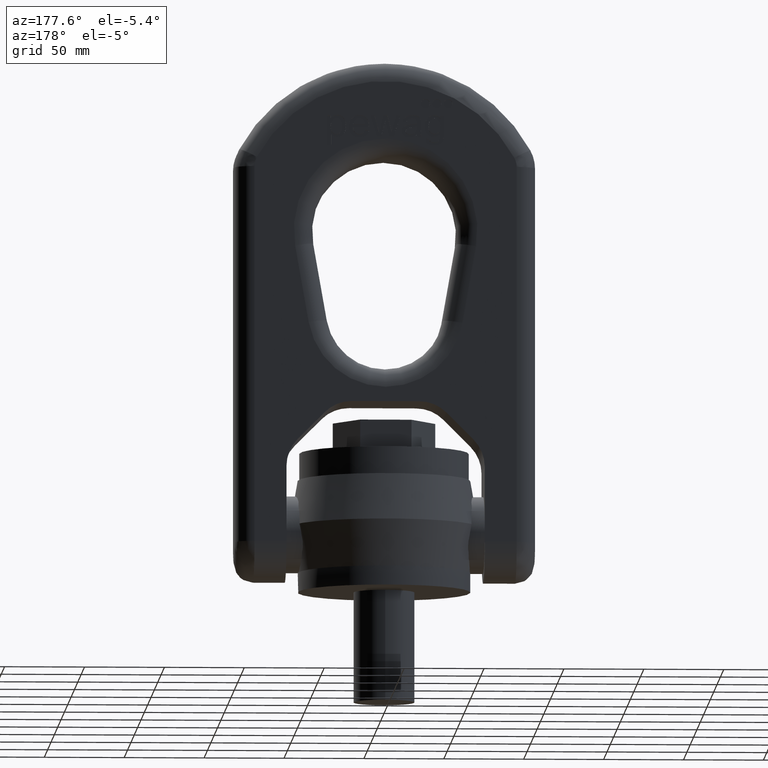
[diagram: clean part render]
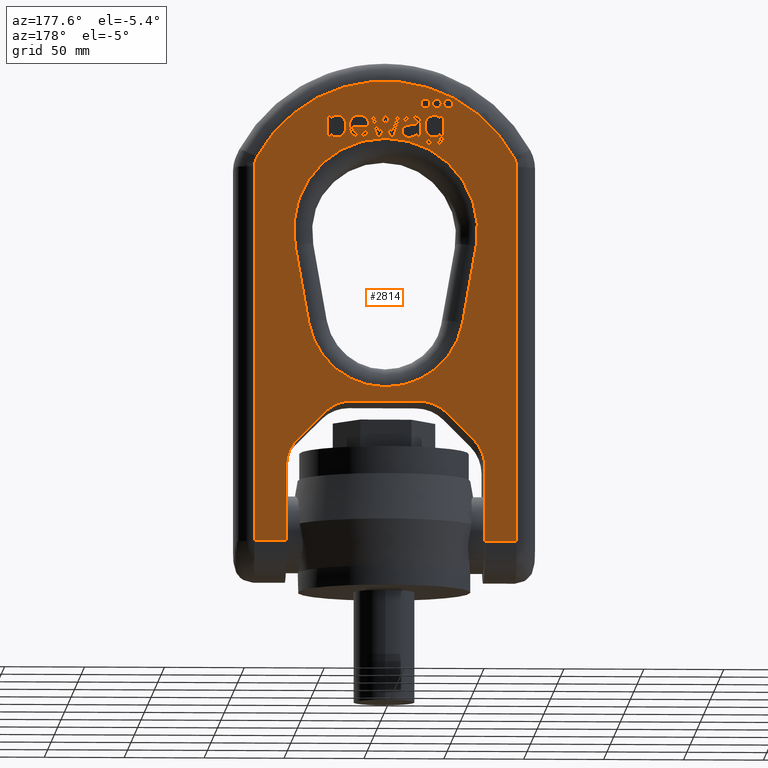
[diagram: same view with one face highlighted and labeled with its STEP entity id]
A machine part, auxiliary view. The second image highlights one B-rep face of the part: STEP entity #2814.
In plain terms, the highlighted planar face has unit normal (0, 1, 0).
Its self-contained STEP definition (entity closure, byte-faithful):
#337=B_SPLINE_CURVE_WITH_KNOTS('',3,(#7431,#7432,#7433,#7434),
 .UNSPECIFIED.,.F.,.F.,(4,4),(0.,1.),.UNSPECIFIED.);
#338=B_SPLINE_CURVE_WITH_KNOTS('',3,(#7436,#7437,#7438,#7439,#7440,#7441,
#7442,#7443,#7444,#7445),.UNSPECIFIED.,.F.,.F.,(4,2,2,2,4),(0.,0.228358481914091,
0.466434346037283,0.703045305681464,1.),.UNSPECIFIED.);
#339=B_SPLINE_CURVE_WITH_KNOTS('',3,(#7447,#7448,#7449,#7450),
 .UNSPECIFIED.,.F.,.F.,(4,4),(0.,1.),.UNSPECIFIED.);
#340=B_SPLINE_CURVE_WITH_KNOTS('',3,(#7454,#7455,#7456,#7457),
 .UNSPECIFIED.,.F.,.F.,(4,4),(0.,1.),.UNSPECIFIED.);
#341=B_SPLINE_CURVE_WITH_KNOTS('',3,(#7459,#7460,#7461,#7462),
 .UNSPECIFIED.,.F.,.F.,(4,4),(0.,1.),.UNSPECIFIED.);
#342=B_SPLINE_CURVE_WITH_KNOTS('',3,(#7464,#7465,#7466,#7467),
 .UNSPECIFIED.,.F.,.F.,(4,4),(0.,1.),.UNSPECIFIED.);
#343=B_SPLINE_CURVE_WITH_KNOTS('',3,(#7469,#7470,#7471,#7472),
 .UNSPECIFIED.,.F.,.F.,(4,4),(0.,1.),.UNSPECIFIED.);
#344=B_SPLINE_CURVE_WITH_KNOTS('',3,(#7474,#7475,#7476,#7477,#7478,#7479),
 .UNSPECIFIED.,.F.,.F.,(4,2,4),(0.,0.559782608695653,1.),.UNSPECIFIED.);
#345=B_SPLINE_CURVE_WITH_KNOTS('',3,(#7481,#7482,#7483,#7484),
 .UNSPECIFIED.,.F.,.F.,(4,4),(0.,1.),.UNSPECIFIED.);
#346=B_SPLINE_CURVE_WITH_KNOTS('',3,(#7488,#7489,#7490,#7491),
 .UNSPECIFIED.,.F.,.F.,(4,4),(0.,1.),.UNSPECIFIED.);
#347=B_SPLINE_CURVE_WITH_KNOTS('',3,(#7493,#7494,#7495,#7496,#7497,#7498),
 .UNSPECIFIED.,.F.,.F.,(4,2,4),(0.,0.476123595505615,1.),.UNSPECIFIED.);
#348=B_SPLINE_CURVE_WITH_KNOTS('',3,(#7500,#7501,#7502,#7503),
 .UNSPECIFIED.,.F.,.F.,(4,4),(0.,1.),.UNSPECIFIED.);
#349=B_SPLINE_CURVE_WITH_KNOTS('',3,(#7505,#7506,#7507,#7508,#7509,#7510,
#7511,#7512),.UNSPECIFIED.,.F.,.F.,(4,2,2,4),(0.,0.472355769230764,0.730769230769229,
1.),.UNSPECIFIED.);
#350=B_SPLINE_CURVE_WITH_KNOTS('',3,(#7514,#7515,#7516,#7517),
 .UNSPECIFIED.,.F.,.F.,(4,4),(0.,1.),.UNSPECIFIED.);
#351=B_SPLINE_CURVE_WITH_KNOTS('',3,(#7525,#7526,#7527,#7528),
 .UNSPECIFIED.,.F.,.F.,(4,4),(0.,1.),.UNSPECIFIED.);
#352=B_SPLINE_CURVE_WITH_KNOTS('',3,(#7530,#7531,#7532,#7533),
 .UNSPECIFIED.,.F.,.F.,(4,4),(0.,1.),.UNSPECIFIED.);
#353=B_SPLINE_CURVE_WITH_KNOTS('',3,(#7555,#7556,#7557,#7558),
 .UNSPECIFIED.,.F.,.F.,(4,4),(0.,1.),.UNSPECIFIED.);
#354=B_SPLINE_CURVE_WITH_KNOTS('',3,(#7568,#7569,#7570,#7571),
 .UNSPECIFIED.,.F.,.F.,(4,4),(0.,1.),.UNSPECIFIED.);
#355=B_SPLINE_CURVE_WITH_KNOTS('',3,(#7573,#7574,#7575,#7576,#7577,#7578),
 .UNSPECIFIED.,.F.,.F.,(4,2,4),(0.,0.434679334916864,1.),.UNSPECIFIED.);
#356=B_SPLINE_CURVE_WITH_KNOTS('',3,(#7580,#7581,#7582,#7583),
 .UNSPECIFIED.,.F.,.F.,(4,4),(0.,1.),.UNSPECIFIED.);
#357=B_SPLINE_CURVE_WITH_KNOTS('',3,(#7587,#7588,#7589,#7590),
 .UNSPECIFIED.,.F.,.F.,(4,4),(0.,1.),.UNSPECIFIED.);
#358=B_SPLINE_CURVE_WITH_KNOTS('',3,(#7592,#7593,#7594,#7595,#7596,#7597),
 .UNSPECIFIED.,.F.,.F.,(4,2,4),(0.,0.570469798657717,1.),.UNSPECIFIED.);
#359=B_SPLINE_CURVE_WITH_KNOTS('',3,(#7599,#7600,#7601,#7602,#7603,#7604,
#7605,#7606,#7607,#7608,#7609,#7610),.UNSPECIFIED.,.F.,.F.,(4,2,2,2,2,4),
(0.,0.122570626594238,0.245141253188474,0.49563753375242,0.746133814316367,
1.),.UNSPECIFIED.);
#360=B_SPLINE_CURVE_WITH_KNOTS('',3,(#7612,#7613,#7614,#7615),
 .UNSPECIFIED.,.F.,.F.,(4,4),(0.,1.),.UNSPECIFIED.);
#361=B_SPLINE_CURVE_WITH_KNOTS('',3,(#7616,#7617,#7618,#7619),
 .UNSPECIFIED.,.F.,.F.,(4,4),(0.,1.),.UNSPECIFIED.);
#362=B_SPLINE_CURVE_WITH_KNOTS('',3,(#7622,#7623,#7624,#7625),
 .UNSPECIFIED.,.F.,.F.,(4,4),(0.,1.),.UNSPECIFIED.);
#363=B_SPLINE_CURVE_WITH_KNOTS('',3,(#7627,#7628,#7629,#7630,#7631,#7632,
#7633,#7634,#7635,#7636),.UNSPECIFIED.,.F.,.F.,(4,2,2,2,4),(0.,0.230139294836349,
0.492074150143508,0.754009005450667,1.),.UNSPECIFIED.);
#364=B_SPLINE_CURVE_WITH_KNOTS('',3,(#7653,#7654,#7655,#7656,#7657,#7658),
 .UNSPECIFIED.,.F.,.F.,(4,2,4),(0.,0.329498767460978,1.),.UNSPECIFIED.);
#365=B_SPLINE_CURVE_WITH_KNOTS('',3,(#7661,#7662,#7663,#7664,#7665,#7666,
#7667,#7668),.UNSPECIFIED.,.F.,.F.,(4,2,2,4),(0.,0.361028692437345,0.681441656975489,
1.),.UNSPECIFIED.);
#366=B_SPLINE_CURVE_WITH_KNOTS('',3,(#7670,#7671,#7672,#7673),
 .UNSPECIFIED.,.F.,.F.,(4,4),(0.,1.),.UNSPECIFIED.);
#367=B_SPLINE_CURVE_WITH_KNOTS('',3,(#7677,#7678,#7679,#7680),
 .UNSPECIFIED.,.F.,.F.,(4,4),(0.,1.),.UNSPECIFIED.);
#368=B_SPLINE_CURVE_WITH_KNOTS('',3,(#7682,#7683,#7684,#7685,#7686,#7687),
 .UNSPECIFIED.,.F.,.F.,(4,2,4),(0.,0.555803571428572,1.),.UNSPECIFIED.);
#369=B_SPLINE_CURVE_WITH_KNOTS('',3,(#7689,#7690,#7691,#7692,#7693,#7694),
 .UNSPECIFIED.,.F.,.F.,(4,2,4),(0.,0.499999999999998,1.),.UNSPECIFIED.);
#370=B_SPLINE_CURVE_WITH_KNOTS('',3,(#7696,#7697,#7698,#7699,#7700,#7701,
#7702,#7703,#7704,#7705,#7706,#7707,#7708,#7709),.UNSPECIFIED.,.F.,.F.,
(4,2,2,2,2,2,4),(0.,0.152201346045988,0.32718732473359,0.502173303421193,
0.676318003365107,0.850462703309025,1.),.UNSPECIFIED.);
#1766=LINE('',#7041,#2074);
#1769=LINE('',#7050,#2077);
#1771=LINE('',#7059,#2079);
#1772=LINE('',#7063,#2080);
#1815=LINE('',#7395,#2123);
#1816=LINE('',#7400,#2124);
#1817=LINE('',#7406,#2125);
#1818=LINE('',#7407,#2126);
#1819=LINE('',#7411,#2127);
#1820=LINE('',#7415,#2128);
#1821=LINE('',#7419,#2129);
#1822=LINE('',#7422,#2130);
#1823=LINE('',#7423,#2131);
#1824=LINE('',#7428,#2132);
#1825=LINE('',#7452,#2133);
#1826=LINE('',#7486,#2134);
#1827=LINE('',#7518,#2135);
#1828=LINE('',#7521,#2136);
#1829=LINE('',#7523,#2137);
#1830=LINE('',#7535,#2138);
#1831=LINE('',#7537,#2139);
#1832=LINE('',#7539,#2140);
#1833=LINE('',#7541,#2141);
#1834=LINE('',#7543,#2142);
#1835=LINE('',#7545,#2143);
#1836=LINE('',#7547,#2144);
#1837=LINE('',#7549,#2145);
#1838=LINE('',#7551,#2146);
#1839=LINE('',#7553,#2147);
#1840=LINE('',#7560,#2148);
#1841=LINE('',#7562,#2149);
#1842=LINE('',#7564,#2150);
#1843=LINE('',#7565,#2151);
#1844=LINE('',#7585,#2152);
#1845=LINE('',#7638,#2153);
#1846=LINE('',#7640,#2154);
#1847=LINE('',#7642,#2155);
#1848=LINE('',#7644,#2156);
#1849=LINE('',#7646,#2157);
#1850=LINE('',#7648,#2158);
#1851=LINE('',#7650,#2159);
#1852=LINE('',#7675,#2160);
#1853=LINE('',#7711,#2161);
#1854=LINE('',#7713,#2162);
#1855=LINE('',#7715,#2163);
#2074=VECTOR('',#6167,1.);
#2077=VECTOR('',#6174,1.);
#2079=VECTOR('',#6182,1.);
#2080=VECTOR('',#6187,1.);
#2123=VECTOR('',#6260,1.);
#2124=VECTOR('',#6263,1.);
#2125=VECTOR('',#6268,1.);
#2126=VECTOR('',#6269,1.);
#2127=VECTOR('',#6272,1.);
#2128=VECTOR('',#6275,1.);
#2129=VECTOR('',#6278,1.);
#2130=VECTOR('',#6281,1.);
#2131=VECTOR('',#6282,1.);
#2132=VECTOR('',#6287,1.);
#2133=VECTOR('',#6288,1.);
#2134=VECTOR('',#6289,1.);
#2135=VECTOR('',#6290,1.);
#2136=VECTOR('',#6291,1.);
#2137=VECTOR('',#6292,1.);
#2138=VECTOR('',#6293,1.);
#2139=VECTOR('',#6294,1.);
#2140=VECTOR('',#6295,1.);
#2141=VECTOR('',#6296,1.);
#2142=VECTOR('',#6297,1.);
#2143=VECTOR('',#6298,1.);
#2144=VECTOR('',#6299,1.);
#2145=VECTOR('',#6300,1.);
#2146=VECTOR('',#6301,1.);
#2147=VECTOR('',#6302,1.);
#2148=VECTOR('',#6303,1.);
#2149=VECTOR('',#6304,1.);
#2150=VECTOR('',#6305,1.);
#2151=VECTOR('',#6306,1.);
#2152=VECTOR('',#6307,1.);
#2153=VECTOR('',#6308,1.);
#2154=VECTOR('',#6309,1.);
#2155=VECTOR('',#6310,1.);
#2156=VECTOR('',#6311,1.);
#2157=VECTOR('',#6312,1.);
#2158=VECTOR('',#6313,1.);
#2159=VECTOR('',#6314,1.);
#2160=VECTOR('',#6317,1.);
#2161=VECTOR('',#6318,1.);
#2162=VECTOR('',#6319,1.);
#2163=VECTOR('',#6320,1.);
#2686=PLANE('',#5894);
#2814=ADVANCED_FACE('',(#3097,#3098,#3099,#3100,#3101,#3102,#3103,#3104,
#3105,#3106),#2686,.T.);
#3097=FACE_BOUND('',#3183,.T.);
#3098=FACE_BOUND('',#3184,.T.);
#3099=FACE_BOUND('',#3185,.T.);
#3100=FACE_BOUND('',#3186,.T.);
#3101=FACE_BOUND('',#3187,.T.);
#3102=FACE_BOUND('',#3188,.T.);
#3103=FACE_BOUND('',#3189,.T.);
#3104=FACE_BOUND('',#3190,.T.);
#3105=FACE_BOUND('',#3191,.T.);
#3106=FACE_BOUND('',#3192,.T.);
#3183=EDGE_LOOP('',(#3628,#3629,#3630,#3631));
#3184=EDGE_LOOP('',(#3632,#3633,#3634,#3635,#3636,#3637,#3638,#3639,#3640,
#3641,#3642,#3643,#3644,#3645,#3646,#3647,#3648,#3649));
#3185=EDGE_LOOP('',(#3650,#3651,#3652,#3653,#3654,#3655,#3656,#3657,#3658,
#3659,#3660,#3661,#3662,#3663,#3664,#3665,#3666));
#3186=EDGE_LOOP('',(#3667,#3668,#3669,#3670,#3671,#3672,#3673,#3674,#3675,
#3676,#3677,#3678,#3679,#3680,#3681,#3682,#3683,#3684,#3685));
#3187=EDGE_LOOP('',(#3686,#3687,#3688,#3689,#3690,#3691,#3692,#3693,#3694));
#3188=EDGE_LOOP('',(#3695,#3696,#3697,#3698,#3699,#3700,#3701,#3702,#3703,
#3704));
#3189=EDGE_LOOP('',(#3705));
#3190=EDGE_LOOP('',(#3706,#3707,#3708,#3709,#3710,#3711,#3712,#3713,#3714,
#3715,#3716));
#3191=EDGE_LOOP('',(#3717));
#3192=EDGE_LOOP('',(#3718));
#3628=ORIENTED_EDGE('',*,*,#5263,.T.);
#3629=ORIENTED_EDGE('',*,*,#5264,.T.);
#3630=ORIENTED_EDGE('',*,*,#5265,.T.);
#3631=ORIENTED_EDGE('',*,*,#5266,.T.);
#3632=ORIENTED_EDGE('',*,*,#5267,.T.);
#3633=ORIENTED_EDGE('',*,*,#5268,.T.);
#3634=ORIENTED_EDGE('',*,*,#5173,.T.);
#3635=ORIENTED_EDGE('',*,*,#5167,.T.);
#3636=ORIENTED_EDGE('',*,*,#5269,.T.);
#3637=ORIENTED_EDGE('',*,*,#5270,.T.);
#3638=ORIENTED_EDGE('',*,*,#5271,.T.);
#3639=ORIENTED_EDGE('',*,*,#5272,.T.);
#3640=ORIENTED_EDGE('',*,*,#5273,.T.);
#3641=ORIENTED_EDGE('',*,*,#5274,.T.);
#3642=ORIENTED_EDGE('',*,*,#5275,.T.);
#3643=ORIENTED_EDGE('',*,*,#5276,.T.);
#3644=ORIENTED_EDGE('',*,*,#5163,.T.);
#3645=ORIENTED_EDGE('',*,*,#5277,.T.);
#3646=ORIENTED_EDGE('',*,*,#5171,.T.);
#3647=ORIENTED_EDGE('',*,*,#5278,.T.);
#3648=ORIENTED_EDGE('',*,*,#5279,.T.);
#3649=ORIENTED_EDGE('',*,*,#5280,.T.);
#3650=ORIENTED_EDGE('',*,*,#5281,.F.);
#3651=ORIENTED_EDGE('',*,*,#5282,.F.);
#3652=ORIENTED_EDGE('',*,*,#5283,.F.);
#3653=ORIENTED_EDGE('',*,*,#5284,.F.);
#3654=ORIENTED_EDGE('',*,*,#5285,.F.);
#3655=ORIENTED_EDGE('',*,*,#5286,.F.);
#3656=ORIENTED_EDGE('',*,*,#5287,.F.);
#3657=ORIENTED_EDGE('',*,*,#5288,.F.);
#3658=ORIENTED_EDGE('',*,*,#5289,.F.);
#3659=ORIENTED_EDGE('',*,*,#5290,.F.);
#3660=ORIENTED_EDGE('',*,*,#5291,.F.);
#3661=ORIENTED_EDGE('',*,*,#5292,.F.);
#3662=ORIENTED_EDGE('',*,*,#5293,.F.);
#3663=ORIENTED_EDGE('',*,*,#5294,.F.);
#3664=ORIENTED_EDGE('',*,*,#5295,.F.);
#3665=ORIENTED_EDGE('',*,*,#5296,.F.);
#3666=ORIENTED_EDGE('',*,*,#5297,.F.);
#3667=ORIENTED_EDGE('',*,*,#5298,.F.);
#3668=ORIENTED_EDGE('',*,*,#5299,.F.);
#3669=ORIENTED_EDGE('',*,*,#5300,.F.);
#3670=ORIENTED_EDGE('',*,*,#5301,.F.);
#3671=ORIENTED_EDGE('',*,*,#5302,.F.);
#3672=ORIENTED_EDGE('',*,*,#5303,.F.);
#3673=ORIENTED_EDGE('',*,*,#5304,.F.);
#3674=ORIENTED_EDGE('',*,*,#5305,.F.);
#3675=ORIENTED_EDGE('',*,*,#5306,.F.);
#3676=ORIENTED_EDGE('',*,*,#5307,.F.);
#3677=ORIENTED_EDGE('',*,*,#5308,.F.);
#3678=ORIENTED_EDGE('',*,*,#5309,.F.);
#3679=ORIENTED_EDGE('',*,*,#5310,.F.);
#3680=ORIENTED_EDGE('',*,*,#5311,.F.);
#3681=ORIENTED_EDGE('',*,*,#5312,.F.);
#3682=ORIENTED_EDGE('',*,*,#5313,.F.);
#3683=ORIENTED_EDGE('',*,*,#5314,.F.);
#3684=ORIENTED_EDGE('',*,*,#5315,.F.);
#3685=ORIENTED_EDGE('',*,*,#5316,.F.);
#3686=ORIENTED_EDGE('',*,*,#5317,.F.);
#3687=ORIENTED_EDGE('',*,*,#5318,.F.);
#3688=ORIENTED_EDGE('',*,*,#5319,.F.);
#3689=ORIENTED_EDGE('',*,*,#5320,.F.);
#3690=ORIENTED_EDGE('',*,*,#5321,.F.);
#3691=ORIENTED_EDGE('',*,*,#5322,.F.);
#3692=ORIENTED_EDGE('',*,*,#5323,.F.);
#3693=ORIENTED_EDGE('',*,*,#5324,.F.);
#3694=ORIENTED_EDGE('',*,*,#5325,.F.);
#3695=ORIENTED_EDGE('',*,*,#5326,.F.);
#3696=ORIENTED_EDGE('',*,*,#5327,.F.);
#3697=ORIENTED_EDGE('',*,*,#5328,.F.);
#3698=ORIENTED_EDGE('',*,*,#5329,.F.);
#3699=ORIENTED_EDGE('',*,*,#5330,.F.);
#3700=ORIENTED_EDGE('',*,*,#5331,.F.);
#3701=ORIENTED_EDGE('',*,*,#5332,.F.);
#3702=ORIENTED_EDGE('',*,*,#5333,.F.);
#3703=ORIENTED_EDGE('',*,*,#5334,.F.);
#3704=ORIENTED_EDGE('',*,*,#5335,.F.);
#3705=ORIENTED_EDGE('',*,*,#5336,.F.);
#3706=ORIENTED_EDGE('',*,*,#5337,.F.);
#3707=ORIENTED_EDGE('',*,*,#5338,.F.);
#3708=ORIENTED_EDGE('',*,*,#5339,.F.);
#3709=ORIENTED_EDGE('',*,*,#5340,.F.);
#3710=ORIENTED_EDGE('',*,*,#5341,.F.);
#3711=ORIENTED_EDGE('',*,*,#5342,.F.);
#3712=ORIENTED_EDGE('',*,*,#5343,.F.);
#3713=ORIENTED_EDGE('',*,*,#5344,.F.);
#3714=ORIENTED_EDGE('',*,*,#5345,.F.);
#3715=ORIENTED_EDGE('',*,*,#5346,.F.);
#3716=ORIENTED_EDGE('',*,*,#5347,.F.);
#3717=ORIENTED_EDGE('',*,*,#5348,.F.);
#3718=ORIENTED_EDGE('',*,*,#5349,.F.);
#4731=VERTEX_POINT('',#7040);
#4732=VERTEX_POINT('',#7042);
#4735=VERTEX_POINT('',#7049);
#4736=VERTEX_POINT('',#7051);
#4739=VERTEX_POINT('',#7058);
#4740=VERTEX_POINT('',#7060);
#4741=VERTEX_POINT('',#7064);
#4827=VERTEX_POINT('',#7396);
#4828=VERTEX_POINT('',#7397);
#4829=VERTEX_POINT('',#7399);
#4830=VERTEX_POINT('',#7401);
#4831=VERTEX_POINT('',#7404);
#4832=VERTEX_POINT('',#7405);
#4833=VERTEX_POINT('',#7408);
#4834=VERTEX_POINT('',#7410);
#4835=VERTEX_POINT('',#7412);
#4836=VERTEX_POINT('',#7414);
#4837=VERTEX_POINT('',#7416);
#4838=VERTEX_POINT('',#7418);
#4839=VERTEX_POINT('',#7420);
#4840=VERTEX_POINT('',#7424);
#4841=VERTEX_POINT('',#7426);
#4842=VERTEX_POINT('',#7429);
#4843=VERTEX_POINT('',#7430);
#4844=VERTEX_POINT('',#7435);
#4845=VERTEX_POINT('',#7446);
#4846=VERTEX_POINT('',#7451);
#4847=VERTEX_POINT('',#7453);
#4848=VERTEX_POINT('',#7458);
#4849=VERTEX_POINT('',#7463);
#4850=VERTEX_POINT('',#7468);
#4851=VERTEX_POINT('',#7473);
#4852=VERTEX_POINT('',#7480);
#4853=VERTEX_POINT('',#7485);
#4854=VERTEX_POINT('',#7487);
#4855=VERTEX_POINT('',#7492);
#4856=VERTEX_POINT('',#7499);
#4857=VERTEX_POINT('',#7504);
#4858=VERTEX_POINT('',#7513);
#4859=VERTEX_POINT('',#7519);
#4860=VERTEX_POINT('',#7520);
#4861=VERTEX_POINT('',#7522);
#4862=VERTEX_POINT('',#7524);
#4863=VERTEX_POINT('',#7529);
#4864=VERTEX_POINT('',#7534);
#4865=VERTEX_POINT('',#7536);
#4866=VERTEX_POINT('',#7538);
#4867=VERTEX_POINT('',#7540);
#4868=VERTEX_POINT('',#7542);
#4869=VERTEX_POINT('',#7544);
#4870=VERTEX_POINT('',#7546);
#4871=VERTEX_POINT('',#7548);
#4872=VERTEX_POINT('',#7550);
#4873=VERTEX_POINT('',#7552);
#4874=VERTEX_POINT('',#7554);
#4875=VERTEX_POINT('',#7559);
#4876=VERTEX_POINT('',#7561);
#4877=VERTEX_POINT('',#7563);
#4878=VERTEX_POINT('',#7566);
#4879=VERTEX_POINT('',#7567);
#4880=VERTEX_POINT('',#7572);
#4881=VERTEX_POINT('',#7579);
#4882=VERTEX_POINT('',#7584);
#4883=VERTEX_POINT('',#7586);
#4884=VERTEX_POINT('',#7591);
#4885=VERTEX_POINT('',#7598);
#4886=VERTEX_POINT('',#7611);
#4887=VERTEX_POINT('',#7620);
#4888=VERTEX_POINT('',#7621);
#4889=VERTEX_POINT('',#7626);
#4890=VERTEX_POINT('',#7637);
#4891=VERTEX_POINT('',#7639);
#4892=VERTEX_POINT('',#7641);
#4893=VERTEX_POINT('',#7643);
#4894=VERTEX_POINT('',#7645);
#4895=VERTEX_POINT('',#7647);
#4896=VERTEX_POINT('',#7649);
#4897=VERTEX_POINT('',#7652);
#4898=VERTEX_POINT('',#7659);
#4899=VERTEX_POINT('',#7660);
#4900=VERTEX_POINT('',#7669);
#4901=VERTEX_POINT('',#7674);
#4902=VERTEX_POINT('',#7676);
#4903=VERTEX_POINT('',#7681);
#4904=VERTEX_POINT('',#7688);
#4905=VERTEX_POINT('',#7695);
#4906=VERTEX_POINT('',#7710);
#4907=VERTEX_POINT('',#7712);
#4908=VERTEX_POINT('',#7714);
#4909=VERTEX_POINT('',#7717);
#4910=VERTEX_POINT('',#7719);
#5163=EDGE_CURVE('',#4732,#4731,#1766,.T.);
#5167=EDGE_CURVE('',#4736,#4735,#1769,.T.);
#5171=EDGE_CURVE('',#4740,#4739,#1771,.T.);
#5173=EDGE_CURVE('',#4741,#4736,#1772,.T.);
#5263=EDGE_CURVE('',#4827,#4828,#1815,.T.);
#5264=EDGE_CURVE('',#4828,#4829,#5775,.T.);
#5265=EDGE_CURVE('',#4829,#4830,#1816,.T.);
#5266=EDGE_CURVE('',#4830,#4827,#5776,.T.);
#5267=EDGE_CURVE('',#4831,#4832,#5777,.T.);
#5268=EDGE_CURVE('',#4832,#4741,#1817,.T.);
#5269=EDGE_CURVE('',#4735,#4833,#1818,.T.);
#5270=EDGE_CURVE('',#4833,#4834,#5778,.T.);
#5271=EDGE_CURVE('',#4834,#4835,#1819,.T.);
#5272=EDGE_CURVE('',#4835,#4836,#5779,.T.);
#5273=EDGE_CURVE('',#4836,#4837,#1820,.T.);
#5274=EDGE_CURVE('',#4837,#4838,#5780,.T.);
#5275=EDGE_CURVE('',#4838,#4839,#1821,.T.);
#5276=EDGE_CURVE('',#4839,#4732,#5781,.T.);
#5277=EDGE_CURVE('',#4731,#4740,#1822,.T.);
#5278=EDGE_CURVE('',#4739,#4840,#1823,.T.);
#5279=EDGE_CURVE('',#4840,#4841,#5782,.T.);
#5280=EDGE_CURVE('',#4841,#4831,#5783,.T.);
#5281=EDGE_CURVE('',#4842,#4843,#1824,.T.);
#5282=EDGE_CURVE('',#4844,#4842,#337,.T.);
#5283=EDGE_CURVE('',#4845,#4844,#338,.T.);
#5284=EDGE_CURVE('',#4846,#4845,#339,.T.);
#5285=EDGE_CURVE('',#4847,#4846,#1825,.T.);
#5286=EDGE_CURVE('',#4848,#4847,#340,.T.);
#5287=EDGE_CURVE('',#4849,#4848,#341,.T.);
#5288=EDGE_CURVE('',#4850,#4849,#342,.T.);
#5289=EDGE_CURVE('',#4851,#4850,#343,.T.);
#5290=EDGE_CURVE('',#4852,#4851,#344,.T.);
#5291=EDGE_CURVE('',#4853,#4852,#345,.T.);
#5292=EDGE_CURVE('',#4854,#4853,#1826,.T.);
#5293=EDGE_CURVE('',#4855,#4854,#346,.T.);
#5294=EDGE_CURVE('',#4856,#4855,#347,.T.);
#5295=EDGE_CURVE('',#4857,#4856,#348,.T.);
#5296=EDGE_CURVE('',#4858,#4857,#349,.T.);
#5297=EDGE_CURVE('',#4843,#4858,#350,.T.);
#5298=EDGE_CURVE('',#4859,#4860,#1827,.T.);
#5299=EDGE_CURVE('',#4861,#4859,#1828,.T.);
#5300=EDGE_CURVE('',#4862,#4861,#1829,.T.);
#5301=EDGE_CURVE('',#4863,#4862,#351,.T.);
#5302=EDGE_CURVE('',#4864,#4863,#352,.T.);
#5303=EDGE_CURVE('',#4865,#4864,#1830,.T.);
#5304=EDGE_CURVE('',#4866,#4865,#1831,.T.);
#5305=EDGE_CURVE('',#4867,#4866,#1832,.T.);
#5306=EDGE_CURVE('',#4868,#4867,#1833,.T.);
#5307=EDGE_CURVE('',#4869,#4868,#1834,.T.);
#5308=EDGE_CURVE('',#4870,#4869,#1835,.T.);
#5309=EDGE_CURVE('',#4871,#4870,#1836,.T.);
#5310=EDGE_CURVE('',#4872,#4871,#1837,.T.);
#5311=EDGE_CURVE('',#4873,#4872,#1838,.T.);
#5312=EDGE_CURVE('',#4874,#4873,#1839,.T.);
#5313=EDGE_CURVE('',#4875,#4874,#353,.T.);
#5314=EDGE_CURVE('',#4876,#4875,#1840,.T.);
#5315=EDGE_CURVE('',#4877,#4876,#1841,.T.);
#5316=EDGE_CURVE('',#4860,#4877,#1842,.T.);
#5317=EDGE_CURVE('',#4878,#4879,#1843,.T.);
#5318=EDGE_CURVE('',#4880,#4878,#354,.T.);
#5319=EDGE_CURVE('',#4881,#4880,#355,.T.);
#5320=EDGE_CURVE('',#4882,#4881,#356,.T.);
#5321=EDGE_CURVE('',#4883,#4882,#1844,.T.);
#5322=EDGE_CURVE('',#4884,#4883,#357,.T.);
#5323=EDGE_CURVE('',#4885,#4884,#358,.T.);
#5324=EDGE_CURVE('',#4886,#4885,#359,.T.);
#5325=EDGE_CURVE('',#4879,#4886,#360,.T.);
#5326=EDGE_CURVE('',#4887,#4888,#361,.T.);
#5327=EDGE_CURVE('',#4889,#4887,#362,.T.);
#5328=EDGE_CURVE('',#4890,#4889,#363,.T.);
#5329=EDGE_CURVE('',#4891,#4890,#1845,.T.);
#5330=EDGE_CURVE('',#4892,#4891,#1846,.T.);
#5331=EDGE_CURVE('',#4893,#4892,#1847,.T.);
#5332=EDGE_CURVE('',#4894,#4893,#1848,.T.);
#5333=EDGE_CURVE('',#4895,#4894,#1849,.T.);
#5334=EDGE_CURVE('',#4896,#4895,#1850,.T.);
#5335=EDGE_CURVE('',#4888,#4896,#1851,.T.);
#5336=EDGE_CURVE('',#4897,#4897,#5784,.T.);
#5337=EDGE_CURVE('',#4898,#4899,#364,.T.);
#5338=EDGE_CURVE('',#4900,#4898,#365,.T.);
#5339=EDGE_CURVE('',#4901,#4900,#366,.T.);
#5340=EDGE_CURVE('',#4902,#4901,#1852,.T.);
#5341=EDGE_CURVE('',#4903,#4902,#367,.T.);
#5342=EDGE_CURVE('',#4904,#4903,#368,.T.);
#5343=EDGE_CURVE('',#4905,#4904,#369,.T.);
#5344=EDGE_CURVE('',#4906,#4905,#370,.T.);
#5345=EDGE_CURVE('',#4907,#4906,#1853,.T.);
#5346=EDGE_CURVE('',#4908,#4907,#1854,.T.);
#5347=EDGE_CURVE('',#4899,#4908,#1855,.T.);
#5348=EDGE_CURVE('',#4909,#4909,#5785,.T.);
#5349=EDGE_CURVE('',#4910,#4910,#5786,.T.);
#5775=CIRCLE('',#5882,57.5);
#5776=CIRCLE('',#5883,48.8843291780453);
#5777=CIRCLE('',#5884,12.);
#5778=CIRCLE('',#5885,24.);
#5779=CIRCLE('',#5886,24.);
#5780=CIRCLE('',#5887,24.);
#5781=CIRCLE('',#5888,24.);
#5782=CIRCLE('',#5889,12.);
#5783=CIRCLE('',#5890,91.6333333333333);
#5784=CIRCLE('',#5891,2.73);
#5785=CIRCLE('',#5892,2.73);
#5786=CIRCLE('',#5893,2.73);
#5882=AXIS2_PLACEMENT_3D('',#7398,#6261,#6262);
#5883=AXIS2_PLACEMENT_3D('',#7402,#6264,#6265);
#5884=AXIS2_PLACEMENT_3D('',#7403,#6266,#6267);
#5885=AXIS2_PLACEMENT_3D('',#7409,#6270,#6271);
#5886=AXIS2_PLACEMENT_3D('',#7413,#6273,#6274);
#5887=AXIS2_PLACEMENT_3D('',#7417,#6276,#6277);
#5888=AXIS2_PLACEMENT_3D('',#7421,#6279,#6280);
#5889=AXIS2_PLACEMENT_3D('',#7425,#6283,#6284);
#5890=AXIS2_PLACEMENT_3D('',#7427,#6285,#6286);
#5891=AXIS2_PLACEMENT_3D('',#7651,#6315,#6316);
#5892=AXIS2_PLACEMENT_3D('',#7716,#6321,#6322);
#5893=AXIS2_PLACEMENT_3D('',#7718,#6323,#6324);
#5894=AXIS2_PLACEMENT_3D('',#7720,#6325,#6326);
#6167=DIRECTION('',(-2.39272203583008E-16,5.60593412965593E-31,-1.));
#6174=DIRECTION('',(-2.39272203583008E-16,5.60593412965593E-31,1.));
#6182=DIRECTION('',(-1.,2.34291072916505E-15,1.16263381900573E-15));
#6187=DIRECTION('',(-1.,2.34291072916505E-15,1.16263381900573E-15));
#6260=DIRECTION('',(0.173648177666931,-4.0684217855581E-16,0.984807753012208));
#6261=DIRECTION('',(-2.34291072916505E-15,-1.,0.));
#6262=DIRECTION('',(-1.,2.35319010654245E-15,0.));
#6263=DIRECTION('',(0.173648177666931,-4.0684217855581E-16,-0.984807753012208));
#6264=DIRECTION('',(-2.34291072916505E-15,-1.,0.));
#6265=DIRECTION('',(-1.,2.34209513231675E-15,0.));
#6266=DIRECTION('',(2.34291072916505E-15,1.,0.));
#6267=DIRECTION('',(-1.,2.31296463463574E-15,0.));
#6268=DIRECTION('',(1.04738021191052E-16,-2.45391833600033E-31,-1.));
#6269=DIRECTION('',(-2.39272203583008E-16,5.60593412965593E-31,1.));
#6270=DIRECTION('',(-2.34291072916505E-15,-1.,0.));
#6271=DIRECTION('',(-1.,2.31296463463574E-15,0.));
#6272=DIRECTION('',(-0.707106781186548,1.65668806430733E-15,0.707106781186547));
#6273=DIRECTION('',(-2.34291072916505E-15,-1.,0.));
#6274=DIRECTION('',(-1.,2.31296463463574E-15,0.));
#6275=DIRECTION('',(-1.,2.34291072916505E-15,0.));
#6276=DIRECTION('',(-2.34291072916505E-15,-1.,0.));
#6277=DIRECTION('',(-1.,2.31296463463574E-15,0.));
#6278=DIRECTION('',(-0.707106781186548,1.65668806430733E-15,-0.707106781186547));
#6279=DIRECTION('',(-2.34291072916505E-15,-1.,0.));
#6280=DIRECTION('',(-1.,2.31296463463574E-15,0.));
#6281=DIRECTION('',(-2.39272203583008E-16,5.60593412965593E-31,-1.));
#6282=DIRECTION('',(1.04738021191052E-16,-2.45391833600033E-31,1.));
#6283=DIRECTION('',(2.34291072916505E-15,1.,0.));
#6284=DIRECTION('',(-1.,2.31296463463574E-15,0.));
#6285=DIRECTION('',(2.34291072916505E-15,1.,0.));
#6286=DIRECTION('',(-1.,2.34746137891369E-15,0.));
#6287=DIRECTION('',(-1.,2.34291072916505E-15,0.));
#6288=DIRECTION('',(0.989370262977933,-2.31800620424785E-15,-0.145418302613445));
#6289=DIRECTION('',(-0.991928985003785,2.32400106153516E-15,-0.126794671454921));
#6290=DIRECTION('',(-0.304245570453576,7.12820211316624E-16,0.952593634693922));
#6291=DIRECTION('',(-1.,2.34291072916505E-15,0.));
#6292=DIRECTION('',(-0.259135455314436,6.07131238563263E-16,-0.965840988879112));
#6293=DIRECTION('',(-1.,2.34291072916505E-15,0.));
#6294=DIRECTION('',(-0.254367653151693,5.95960703721636E-16,0.967107593305988));
#6295=DIRECTION('',(-1.,2.34291072916505E-15,0.));
#6296=DIRECTION('',(-0.298320908470947,6.98939257190845E-16,-0.954465628280594));
#6297=DIRECTION('',(1.,-2.34291072916505E-15,0.));
#6298=DIRECTION('',(0.269463722620022,-6.31329446847205E-16,0.963010541059525));
#6299=DIRECTION('',(0.247736970080362,-5.80425605212121E-16,-0.968827329122895));
#6300=DIRECTION('',(0.26605956351618,-6.23353805959029E-16,-0.963956590652079));
#6301=DIRECTION('',(1.,-2.34291072916505E-15,0.));
#6302=DIRECTION('',(0.253070161005815,-5.9292079545205E-16,0.96744792811215));
#6303=DIRECTION('',(1.,-2.34291072916505E-15,0.));
#6304=DIRECTION('',(0.287282618696353,-6.73077529646318E-16,-0.957845862858407));
#6305=DIRECTION('',(1.,-2.34291072916505E-15,0.));
#6306=DIRECTION('',(-1.,2.34291072916505E-15,0.));
#6307=DIRECTION('',(0.992687288142562,-2.32577769809496E-15,0.120714323757232));
#6308=DIRECTION('',(-1.,2.34291072916505E-15,0.));
#6309=DIRECTION('',(0.,0.,1.));
#6310=DIRECTION('',(-1.,2.34291072916505E-15,0.));
#6311=DIRECTION('',(0.,0.,-1.));
#6312=DIRECTION('',(1.,-2.34291072916505E-15,0.));
#6313=DIRECTION('',(0.,0.,1.));
#6314=DIRECTION('',(1.,-2.34291072916505E-15,0.));
#6315=DIRECTION('',(2.34291072916505E-15,1.,0.));
#6316=DIRECTION('',(0.,0.,-1.));
#6317=DIRECTION('',(0.98866666292571,-2.31635773213645E-15,0.150127377980638));
#6318=DIRECTION('',(1.,-2.34291072916505E-15,0.));
#6319=DIRECTION('',(0.,0.,-1.));
#6320=DIRECTION('',(1.,-2.34291072916505E-15,0.));
#6321=DIRECTION('',(2.34291072916505E-15,1.,0.));
#6322=DIRECTION('',(0.,0.,-1.));
#6323=DIRECTION('',(2.34291072916505E-15,1.,0.));
#6324=DIRECTION('',(0.,0.,-1.));
#6325=DIRECTION('',(2.34291072916505E-15,1.,0.));
#6326=DIRECTION('',(0.,0.,-1.));
#7040=CARTESIAN_POINT('',(-62.04,24.0000000000001,36.));
#7041=CARTESIAN_POINT('',(-62.0399999999999,24.0000000000001,227.366666666667));
#7042=CARTESIAN_POINT('',(-62.04,24.0000000000001,77.0588745030457));
#7049=CARTESIAN_POINT('',(62.04,23.9999999999999,36.));
#7050=CARTESIAN_POINT('',(62.0399999999999,23.9999999999999,227.366666666667));
#7051=CARTESIAN_POINT('',(62.04,23.9999999999999,29.9999999999999));
#7058=CARTESIAN_POINT('',(-82.,24.0000000000002,30.0000000000001));
#7059=CARTESIAN_POINT('',(94.0000000000001,23.9999999999998,29.9999999999999));
#7060=CARTESIAN_POINT('',(-62.04,24.0000000000001,29.9999999999999));
#7063=CARTESIAN_POINT('',(94.0000000000001,23.9999999999998,29.9999999999999));
#7064=CARTESIAN_POINT('',(82.,23.9999999999998,29.9999999999999));
#7395=CARTESIAN_POINT('',(56.626445798202,23.9999999999999,215.515229784152));
#7396=CARTESIAN_POINT('',(48.1416663753399,23.9999999999999,167.395654499807));
#7397=CARTESIAN_POINT('',(56.626445798202,23.9999999999999,215.515229784152));
#7398=CARTESIAN_POINT('',(2.81149287499806E-14,24.,225.5));
#7399=CARTESIAN_POINT('',(-56.626445798202,24.0000000000001,215.515229784152));
#7400=CARTESIAN_POINT('',(-48.1416663753398,24.0000000000001,167.395654499807));
#7401=CARTESIAN_POINT('',(-48.1416663753399,24.0000000000001,167.395654499807));
#7402=CARTESIAN_POINT('',(2.81149287499806E-14,24.,175.884329178045));
#7403=CARTESIAN_POINT('',(70.,23.9999999999998,265.333333333333));
#7404=CARTESIAN_POINT('',(80.5483465885308,23.9999999999998,271.054555602065));
#7405=CARTESIAN_POINT('',(82.,23.9999999999998,265.333333333333));
#7406=CARTESIAN_POINT('',(82.,23.9999999999998,29.9999999999999));
#7407=CARTESIAN_POINT('',(62.0399999999999,23.9999999999999,227.366666666667));
#7408=CARTESIAN_POINT('',(62.04,23.9999999999999,77.0588745030457));
#7409=CARTESIAN_POINT('',(38.04,23.9999999999999,77.0588745030457));
#7410=CARTESIAN_POINT('',(55.0105627484771,23.9999999999999,94.0294372515228));
#7411=CARTESIAN_POINT('',(-39.1633333333334,24.0000000000001,188.203333333333));
#7412=CARTESIAN_POINT('',(38.0694372515228,23.9999999999999,110.970562748477));
#7413=CARTESIAN_POINT('',(21.0988745030457,23.9999999999999,94.));
#7414=CARTESIAN_POINT('',(21.0988745030457,24.,118.));
#7415=CARTESIAN_POINT('',(5.62298574999612E-14,24.,118.));
#7416=CARTESIAN_POINT('',(-21.0988745030457,24.0000000000001,118.));
#7417=CARTESIAN_POINT('',(-21.0988745030457,24.0000000000001,94.));
#7418=CARTESIAN_POINT('',(-38.0694372515228,24.0000000000001,110.970562748477));
#7419=CARTESIAN_POINT('',(39.1633333333334,23.9999999999999,188.203333333333));
#7420=CARTESIAN_POINT('',(-55.0105627484771,24.0000000000001,94.0294372515229));
#7421=CARTESIAN_POINT('',(-38.04,24.0000000000001,77.0588745030457));
#7422=CARTESIAN_POINT('',(-62.0399999999999,24.0000000000001,227.366666666667));
#7423=CARTESIAN_POINT('',(-82.,24.0000000000002,265.333333333333));
#7424=CARTESIAN_POINT('',(-82.,24.0000000000002,265.333333333333));
#7425=CARTESIAN_POINT('',(-70.,24.0000000000002,265.333333333333));
#7426=CARTESIAN_POINT('',(-80.5483465885307,24.0000000000002,271.054555602065));
#7427=CARTESIAN_POINT('',(2.81149287499806E-14,24.,227.366666666667));
#7428=CARTESIAN_POINT('',(5.62298574999612E-14,24.,284.));
#7429=CARTESIAN_POINT('',(-20.2690700852475,24.0000000000001,284.));
#7430=CARTESIAN_POINT('',(-22.6567319580919,24.0000000000001,284.));
#7431=CARTESIAN_POINT('',(-19.8000650745102,24.,285.624916858532));
#7432=CARTESIAN_POINT('',(-19.890076137177,24.,284.954464057304));
#7433=CARTESIAN_POINT('',(-20.0464111407561,24.0000000000001,284.414377078537));
#7434=CARTESIAN_POINT('',(-20.2690700852475,24.0000000000001,284.));
#7435=CARTESIAN_POINT('',(-19.8000650745102,24.,285.624916858532));
#7436=CARTESIAN_POINT('',(-11.4669356413092,24.,290.187720644666));
#7437=CARTESIAN_POINT('',(-10.6805231990629,24.,289.480020465592));
#7438=CARTESIAN_POINT('',(-10.2873169779397,24.,288.581427475058));
#7439=CARTESIAN_POINT('',(-10.2873169779397,24.,286.346584804298));
#7440=CARTESIAN_POINT('',(-10.6947354721155,24.,285.42936812484));
#7441=CARTESIAN_POINT('',(-12.3288413746167,24.,284.036888708523));
#7442=CARTESIAN_POINT('',(-13.4471790199778,24.,283.68805321054));
#7443=CARTESIAN_POINT('',(-16.6307281837704,24.,283.68805321054));
#7444=CARTESIAN_POINT('',(-18.2746144335263,24.,284.335226400614));
#7445=CARTESIAN_POINT('',(-19.8000650745102,24.,285.624916858532));
#7446=CARTESIAN_POINT('',(-11.4669356413092,24.,290.187720644666));
#7447=CARTESIAN_POINT('',(-15.5695451291728,24.,291.598465080583));
#7448=CARTESIAN_POINT('',(-13.6224637209604,24.,291.365668969046));
#7449=CARTESIAN_POINT('',(-12.2580855079065,24.,290.89542082374));
#7450=CARTESIAN_POINT('',(-11.4669356413092,24.,290.187720644666));
#7451=CARTESIAN_POINT('',(-15.5695451291728,24.,291.598465080583));
#7452=CARTESIAN_POINT('',(8.91195114541109,24.,288.000158393083));
#7453=CARTESIAN_POINT('',(-17.6919112383679,24.,291.910411870044));
#7454=CARTESIAN_POINT('',(-19.648467495282,24.,292.366692248657));
#7455=CARTESIAN_POINT('',(-19.1320882410359,24.,292.185111281658));
#7456=CARTESIAN_POINT('',(-18.4830611049651,24.,292.031465848043));
#7457=CARTESIAN_POINT('',(-17.6919112383679,24.,291.910411870044));
#7458=CARTESIAN_POINT('',(-19.648467495282,24.,292.366692248657));
#7459=CARTESIAN_POINT('',(-19.5868809787206,24.,293.786748529036));
#7460=CARTESIAN_POINT('',(-19.6247803735276,24.,293.512049117421));
#7461=CARTESIAN_POINT('',(-19.648467495282,24.,293.037145049885));
#7462=CARTESIAN_POINT('',(-19.648467495282,24.,292.366692248657));
#7463=CARTESIAN_POINT('',(-19.5868809787206,24.,293.786748529036));
#7464=CARTESIAN_POINT('',(-19.2126244550009,24.,294.652750063955));
#7465=CARTESIAN_POINT('',(-19.4163337020888,24.,294.354771041187));
#7466=CARTESIAN_POINT('',(-19.5442441595626,24.,294.066103862881));
#7467=CARTESIAN_POINT('',(-19.5868809787206,24.,293.786748529036));
#7468=CARTESIAN_POINT('',(-19.2126244550009,24.,294.652750063955));
#7469=CARTESIAN_POINT('',(-18.2225027656666,24.,295.36976208749));
#7470=CARTESIAN_POINT('',(-18.6772955033513,24.,295.188181120491));
#7471=CARTESIAN_POINT('',(-19.0041777835621,24.,294.950729086723));
#7472=CARTESIAN_POINT('',(-19.2126244550009,24.,294.652750063955));
#7473=CARTESIAN_POINT('',(-18.2225027656666,24.,295.36976208749));
#7474=CARTESIAN_POINT('',(-14.0725190342942,24.,295.109030442568));
#7475=CARTESIAN_POINT('',(-14.6410099564,24.,295.467536454336));
#7476=CARTESIAN_POINT('',(-15.4132101255937,24.,295.644461499105));
#7477=CARTESIAN_POINT('',(-17.1565822867182,24.,295.644461499105));
#7478=CARTESIAN_POINT('',(-17.767710027982,24.,295.55599897672));
#7479=CARTESIAN_POINT('',(-18.2225027656666,24.,295.36976208749));
#7480=CARTESIAN_POINT('',(-14.0725190342942,24.,295.109030442568));
#7481=CARTESIAN_POINT('',(-12.9023752196264,24.,293.125607572269));
#7482=CARTESIAN_POINT('',(-13.1108218910652,24.,294.094039396265));
#7483=CARTESIAN_POINT('',(-13.5040281121884,24.,294.755180353031));
#7484=CARTESIAN_POINT('',(-14.0725190342942,24.,295.109030442568));
#7485=CARTESIAN_POINT('',(-12.9023752196264,24.,293.125607572269));
#7486=CARTESIAN_POINT('',(-8.47801817663144,24.,293.691157028074));
#7487=CARTESIAN_POINT('',(-10.6805231990629,24.,293.409618828345));
#7488=CARTESIAN_POINT('',(-12.5612806663629,24.,296.449936045024));
#7489=CARTESIAN_POINT('',(-11.5522092796251,24.,295.774827321566));
#7490=CARTESIAN_POINT('',(-10.9221318409578,24.,294.759836275262));
#7491=CARTESIAN_POINT('',(-10.6805231990629,24.,293.409618828345));
#7492=CARTESIAN_POINT('',(-12.5612806663629,24.,296.449936045024));
#7493=CARTESIAN_POINT('',(-20.2738075095984,24.0000000000001,296.766538756715));
#7494=CARTESIAN_POINT('',(-19.5205570378082,24.,297.236786902021));
#7495=CARTESIAN_POINT('',(-18.3362009500878,24.,297.469583013558));
#7496=CARTESIAN_POINT('',(-14.96315481226,24.,297.469583013558));
#7497=CARTESIAN_POINT('',(-13.5703520531007,24.,297.129700690714));
#7498=CARTESIAN_POINT('',(-12.5612806663629,24.,296.449936045024));
#7499=CARTESIAN_POINT('',(-20.2738075095984,24.0000000000001,296.766538756715));
#7500=CARTESIAN_POINT('',(-21.6618728444068,24.0000000000001,295.071783064722));
#7501=CARTESIAN_POINT('',(-21.491325567775,24.0000000000001,295.73757994372));
#7502=CARTESIAN_POINT('',(-21.0270579813886,24.0000000000001,296.30094653364));
#7503=CARTESIAN_POINT('',(-20.2738075095984,24.0000000000001,296.766538756715));
#7504=CARTESIAN_POINT('',(-21.6618728444068,24.0000000000001,295.071783064722));
#7505=CARTESIAN_POINT('',(-22.0313919437756,24.0000000000001,285.829777436685));
#7506=CARTESIAN_POINT('',(-21.9555931541614,24.0000000000001,286.453671015605));
#7507=CARTESIAN_POINT('',(-21.9224311837053,24.0000000000001,287.682834484523));
#7508=CARTESIAN_POINT('',(-21.9224311837053,24.0000000000001,290.513635200819));
#7509=CARTESIAN_POINT('',(-21.9224311837053,24.0000000000001,291.51465848043));
#7510=CARTESIAN_POINT('',(-21.9224311837053,24.0000000000001,293.558608339729));
#7511=CARTESIAN_POINT('',(-21.8371575453894,24.0000000000001,294.410642107956));
#7512=CARTESIAN_POINT('',(-21.6618728444068,24.0000000000001,295.071783064722));
#7513=CARTESIAN_POINT('',(-22.0313919437756,24.0000000000001,285.829777436685));
#7514=CARTESIAN_POINT('',(-22.6567319580919,24.0000000000001,284.));
#7515=CARTESIAN_POINT('',(-22.3108999804776,24.0000000000001,284.595958045536));
#7516=CARTESIAN_POINT('',(-22.1024533090388,24.0000000000001,285.205883857764));
#7517=CARTESIAN_POINT('',(-22.0313919437756,24.0000000000001,285.829777436685));
#7518=CARTESIAN_POINT('',(11.9191052257219,24.,231.173468262461));
#7519=CARTESIAN_POINT('',(-4.95297715884681,24.,284.));
#7520=CARTESIAN_POINT('',(-9.15980998242982,24.,297.17160399079));
#7521=CARTESIAN_POINT('',(5.62298574999612E-14,24.,284.));
#7522=CARTESIAN_POINT('',(-2.5937398321077,24.,284.));
#7523=CARTESIAN_POINT('',(-16.5939641928821,24.,231.818832723094));
#7524=CARTESIAN_POINT('',(-0.471373722912666,24.,291.910411870044));
#7525=CARTESIAN_POINT('',(-0.206077959263287,24.,292.976618060885));
#7526=CARTESIAN_POINT('',(-0.37188781154415,24.,292.26426195958));
#7527=CARTESIAN_POINT('',(-0.461898874210905,24.,291.905755947813));
#7528=CARTESIAN_POINT('',(-0.471373722912666,24.,291.910411870044));
#7529=CARTESIAN_POINT('',(-0.206077959263287,24.,292.976618060885));
#7530=CARTESIAN_POINT('',(0.0450055313334438,24.,294.140598618573));
#7531=CARTESIAN_POINT('',(0.0450055313334438,24.,294.075415707342));
#7532=CARTESIAN_POINT('',(-0.0355306826315461,24.,293.68897416219));
#7533=CARTESIAN_POINT('',(-0.206077959263287,24.,292.976618060885));
#7534=CARTESIAN_POINT('',(0.0450055313334438,24.,294.140598618573));
#7535=CARTESIAN_POINT('',(5.62298574999612E-14,24.,294.140598618573));
#7536=CARTESIAN_POINT('',(0.0971171991931458,24.,294.140598618573));
#7537=CARTESIAN_POINT('',(16.5172800469509,24.,231.711024823994));
#7538=CARTESIAN_POINT('',(2.76428710873957,24.,284.));
#7539=CARTESIAN_POINT('',(5.62298574999612E-14,24.,284.));
#7540=CARTESIAN_POINT('',(5.13773670853134,24.,284.));
#7541=CARTESIAN_POINT('',(-11.4451064959512,24.,230.943866794417));
#7542=CARTESIAN_POINT('',(9.25455846944758,24.,297.17160399079));
#7543=CARTESIAN_POINT('',(5.62298574999612E-14,24.,297.17160399079));
#7544=CARTESIAN_POINT('',(6.89532114270847,24.,297.17160399079));
#7545=CARTESIAN_POINT('',(-11.7194832460098,24.,230.645940826198));
#7546=CARTESIAN_POINT('',(3.97706774256531,24.,286.742338193912));
#7547=CARTESIAN_POINT('',(17.9839937846729,24.,231.965319074823));
#7548=CARTESIAN_POINT('',(3.52227500488066,24.,288.520900486058));
#7549=CARTESIAN_POINT('',(18.9571596718013,24.,232.598991106063));
#7550=CARTESIAN_POINT('',(1.13461313203625,24.,297.17160399079));
#7551=CARTESIAN_POINT('',(5.62298574999612E-14,24.,297.17160399079));
#7552=CARTESIAN_POINT('',(-1.20567449729934,24.,297.17160399079));
#7553=CARTESIAN_POINT('',(-18.2189542498522,24.,232.132477364473));
#7554=CARTESIAN_POINT('',(-3.01063317498529,24.,290.27152724482));
#7555=CARTESIAN_POINT('',(-3.84441986074048,24.,287.031005372218));
#7556=CARTESIAN_POINT('',(-3.79230819288078,24.,287.287081094909));
#7557=CARTESIAN_POINT('',(-3.51753758052964,24.,288.367255052443));
#7558=CARTESIAN_POINT('',(-3.01063317498529,24.,290.27152724482));
#7559=CARTESIAN_POINT('',(-3.84441986074048,24.,287.031005372218));
#7560=CARTESIAN_POINT('',(5.62298574999612E-14,24.,287.031005372218));
#7561=CARTESIAN_POINT('',(-3.89653152860018,24.,287.031005372218));
#7562=CARTESIAN_POINT('',(12.8430376162864,24.,231.218624086425));
#7563=CARTESIAN_POINT('',(-6.93795796186627,24.,297.17160399079));
#7564=CARTESIAN_POINT('',(5.62298574999612E-14,24.,297.17160399079));
#7565=CARTESIAN_POINT('',(5.62298574999612E-14,24.,290.020107444359));
#7566=CARTESIAN_POINT('',(20.4348799375285,24.,290.020107444359));
#7567=CARTESIAN_POINT('',(10.3915403136592,24.,290.020107444359));
#7568=CARTESIAN_POINT('',(19.1652502114922,24.,286.681811204912));
#7569=CARTESIAN_POINT('',(19.9185006832824,24.,287.450038372985));
#7570=CARTESIAN_POINT('',(20.3401314505109,24.,288.562803786135));
#7571=CARTESIAN_POINT('',(20.4348799375285,24.,290.020107444359));
#7572=CARTESIAN_POINT('',(19.1652502114922,24.,286.681811204912));
#7573=CARTESIAN_POINT('',(14.1577926726102,24.,286.202251215145));
#7574=CARTESIAN_POINT('',(14.7452332921195,24.,285.750626758762));
#7575=CARTESIAN_POINT('',(15.4747966421553,24.,285.527142491686));
#7576=CARTESIAN_POINT('',(17.4692522938766,24.,285.527142491686));
#7577=CARTESIAN_POINT('',(18.411999739702,24.,285.908928114607));
#7578=CARTESIAN_POINT('',(19.1652502114922,24.,286.681811204912));
#7579=CARTESIAN_POINT('',(14.1577926726102,24.,286.202251215145));
#7580=CARTESIAN_POINT('',(12.802889308258,24.,288.246201074444));
#7581=CARTESIAN_POINT('',(13.1155593154162,24.,287.333640317217));
#7582=CARTESIAN_POINT('',(13.56561462875,24.,286.653875671527));
#7583=CARTESIAN_POINT('',(14.1577926726102,24.,286.202251215145));
#7584=CARTESIAN_POINT('',(12.802889308258,24.,288.246201074444));
#7585=CARTESIAN_POINT('',(-7.10872743777045,24.,285.824877280817));
#7586=CARTESIAN_POINT('',(10.4673391032733,24.,287.962189818368));
#7587=CARTESIAN_POINT('',(12.5518058176613,24.,284.796162701458));
#7588=CARTESIAN_POINT('',(11.5427344309235,24.,285.531798413917));
#7589=CARTESIAN_POINT('',(10.8463330513439,24.,286.584036838066));
#7590=CARTESIAN_POINT('',(10.4673391032733,24.,287.962189818368));
#7591=CARTESIAN_POINT('',(12.5518058176613,24.,284.796162701458));
#7592=CARTESIAN_POINT('',(21.0602199518449,24.,285.508518802763));
#7593=CARTESIAN_POINT('',(19.9279755319842,24.,284.293323100537));
#7594=CARTESIAN_POINT('',(18.3551506474914,24.,283.68805321054));
#7595=CARTESIAN_POINT('',(14.8257695060845,24.,283.68805321054));
#7596=CARTESIAN_POINT('',(13.5608772043991,24.,284.055871066769));
#7597=CARTESIAN_POINT('',(12.5518058176613,24.,284.796162701458));
#7598=CARTESIAN_POINT('',(21.0602199518449,24.,285.508518802763));
#7599=CARTESIAN_POINT('',(11.3390251838356,24.,294.680685597339));
#7600=CARTESIAN_POINT('',(11.9691026225028,24.,295.695676643643));
#7601=CARTESIAN_POINT('',(12.7413027916966,24.,296.412688667178));
#7602=CARTESIAN_POINT('',(14.5509988937334,24.,297.260066513175));
#7603=CARTESIAN_POINT('',(15.4937463395589,24.,297.469583013558));
#7604=CARTESIAN_POINT('',(18.4641114075617,24.,297.469583013558));
#7605=CARTESIAN_POINT('',(20.0132491703001,24.,296.822409823484));
#7606=CARTESIAN_POINT('',(22.2114140691092,23.9999999999999,294.243028907649));
#7607=CARTESIAN_POINT('',(22.7609552938115,23.9999999999999,292.557585060118));
#7608=CARTESIAN_POINT('',(22.7609552938115,23.9999999999999,288.376566896905));
#7609=CARTESIAN_POINT('',(22.1924643717057,23.9999999999999,286.719058582758));
#7610=CARTESIAN_POINT('',(21.0602199518449,24.,285.508518802763));
#7611=CARTESIAN_POINT('',(11.3390251838356,24.,294.680685597339));
#7612=CARTESIAN_POINT('',(10.3915403136592,24.,290.020107444359));
#7613=CARTESIAN_POINT('',(10.3915403136592,24.,292.115272448196));
#7614=CARTESIAN_POINT('',(10.7089477451683,24.,293.670350473267));
#7615=CARTESIAN_POINT('',(11.3390251838356,24.,294.680685597339));
#7616=CARTESIAN_POINT('',(30.4497950152926,23.9999999999999,297.469583013558));
#7617=CARTESIAN_POINT('',(32.1505303572591,23.9999999999999,297.469583013558));
#7618=CARTESIAN_POINT('',(33.4296349319972,23.9999999999999,296.803786134561));
#7619=CARTESIAN_POINT('',(34.277633890805,23.9999999999999,295.472192376567));
#7620=CARTESIAN_POINT('',(30.4497950152926,23.9999999999999,297.469583013558));
#7621=CARTESIAN_POINT('',(34.277633890805,23.9999999999999,295.472192376567));
#7622=CARTESIAN_POINT('',(26.2808615865166,23.9999999999999,295.588590432336));
#7623=CARTESIAN_POINT('',(27.3041452463071,23.9999999999999,296.841033512407));
#7624=CARTESIAN_POINT('',(28.6922105811154,23.9999999999999,297.469583013558));
#7625=CARTESIAN_POINT('',(30.4497950152926,23.9999999999999,297.469583013558));
#7626=CARTESIAN_POINT('',(26.2808615865166,23.9999999999999,295.588590432336));
#7627=CARTESIAN_POINT('',(34.0644497950154,23.9999999999999,285.378152980302));
#7628=CARTESIAN_POINT('',(33.197501138804,23.9999999999999,284.251419800461));
#7629=CARTESIAN_POINT('',(32.0415695971888,23.9999999999999,283.68805321054));
#7630=CARTESIAN_POINT('',(28.9622437691157,23.9999999999999,283.68805321054));
#7631=CARTESIAN_POINT('',(27.5741784343073,23.9999999999999,284.321258633922));
#7632=CARTESIAN_POINT('',(25.3191644432876,23.9999999999999,286.844768482988));
#7633=CARTESIAN_POINT('',(24.7554109455327,23.9999999999999,288.548836019442));
#7634=CARTESIAN_POINT('',(24.7554109455327,23.9999999999999,292.701918649271));
#7635=CARTESIAN_POINT('',(25.262315351077,23.9999999999999,294.336147352264));
#7636=CARTESIAN_POINT('',(26.2808615865166,23.9999999999999,295.588590432336));
#7637=CARTESIAN_POINT('',(34.0644497950154,23.9999999999999,285.378152980302));
#7638=CARTESIAN_POINT('',(5.62298574999612E-14,24.,285.378152980302));
#7639=CARTESIAN_POINT('',(34.1260363115768,23.9999999999999,285.378152980302));
#7640=CARTESIAN_POINT('',(34.1260363115768,23.9999999999999,227.366666666667));
#7641=CARTESIAN_POINT('',(34.1260363115768,23.9999999999999,278.934356612945));
#7642=CARTESIAN_POINT('',(5.62298574999612E-14,24.,278.934356612945));
#7643=CARTESIAN_POINT('',(36.4000000000001,23.9999999999999,278.934356612945));
#7644=CARTESIAN_POINT('',(36.4000000000001,23.9999999999999,227.366666666667));
#7645=CARTESIAN_POINT('',(36.4000000000001,23.9999999999999,297.17160399079));
#7646=CARTESIAN_POINT('',(5.62298574999612E-14,24.,297.17160399079));
#7647=CARTESIAN_POINT('',(34.3297455586647,23.9999999999999,297.17160399079));
#7648=CARTESIAN_POINT('',(34.3297455586647,23.9999999999999,227.366666666667));
#7649=CARTESIAN_POINT('',(34.3297455586647,23.9999999999999,295.472192376567));
#7650=CARTESIAN_POINT('',(5.62298574999612E-14,24.,295.472192376567));
#7651=CARTESIAN_POINT('',(-39.1299999999999,24.0000000000001,304.93));
#7652=CARTESIAN_POINT('',(-39.1299999999999,24.0000000000001,302.2));
#7653=CARTESIAN_POINT('',(-35.8315090778941,24.0000000000001,281.583576362241));
#7654=CARTESIAN_POINT('',(-36.2105030259647,24.0000000000001,282.51010488616));
#7655=CARTESIAN_POINT('',(-36.3999999999999,24.0000000000001,283.906881555385));
#7656=CARTESIAN_POINT('',(-36.3999999999999,24.0000000000001,289.573138910207));
#7657=CARTESIAN_POINT('',(-36.3999999999999,24.0000000000001,293.372371450499));
#7658=CARTESIAN_POINT('',(-36.3999999999999,24.0000000000001,297.17160399079));
#7659=CARTESIAN_POINT('',(-35.8315090778941,24.0000000000001,281.583576362241));
#7660=CARTESIAN_POINT('',(-36.3999999999999,24.0000000000001,297.17160399079));
#7661=CARTESIAN_POINT('',(-26.5461573501659,24.0000000000001,279.656024558711));
#7662=CARTESIAN_POINT('',(-27.5552287369037,24.0000000000001,278.990227679713));
#7663=CARTESIAN_POINT('',(-28.8201210385891,24.0000000000001,278.65965720133));
#7664=CARTESIAN_POINT('',(-31.6815253465217,24.0000000000001,278.65965720133));
#7665=CARTESIAN_POINT('',(-32.8374568881368,24.0000000000001,278.915732924021));
#7666=CARTESIAN_POINT('',(-34.7741795124748,24.0000000000001,279.946356263242));
#7667=CARTESIAN_POINT('',(-35.4525151298236,24.0000000000001,280.661703760553));
#7668=CARTESIAN_POINT('',(-35.8315090778941,24.0000000000001,281.583576362241));
#7669=CARTESIAN_POINT('',(-26.5461573501659,24.0000000000001,279.656024558711));
#7670=CARTESIAN_POINT('',(-25.0301815578837,24.0000000000001,282.905858275774));
#7671=CARTESIAN_POINT('',(-25.0301815578837,24.0000000000001,281.401995395242));
#7672=CARTESIAN_POINT('',(-25.5323485390772,24.0000000000001,280.317165515477));
#7673=CARTESIAN_POINT('',(-26.5461573501659,24.0000000000001,279.656024558711));
#7674=CARTESIAN_POINT('',(-25.0301815578837,24.0000000000001,282.905858275774));
#7675=CARTESIAN_POINT('',(-8.80759235654995,24.,285.369231293375));
#7676=CARTESIAN_POINT('',(-27.2378213053946,24.0000000000001,282.57063187516));
#7677=CARTESIAN_POINT('',(-28.1284570833604,24.0000000000001,281.006242005628));
#7678=CARTESIAN_POINT('',(-27.621552677816,24.0000000000001,281.355436172934));
#7679=CARTESIAN_POINT('',(-27.3230949437105,24.0000000000001,281.876899462778));
#7680=CARTESIAN_POINT('',(-27.2378213053946,24.0000000000001,282.57063187516));
#7681=CARTESIAN_POINT('',(-28.1284570833604,24.0000000000001,281.006242005628));
#7682=CARTESIAN_POINT('',(-32.8990434046983,24.0000000000001,281.192478894858));
#7683=CARTESIAN_POINT('',(-32.349502179996,24.0000000000001,280.722230749552));
#7684=CARTESIAN_POINT('',(-31.4872909481356,24.0000000000001,280.484778715784));
#7685=CARTESIAN_POINT('',(-29.3649248389405,24.0000000000001,280.484778715784));
#7686=CARTESIAN_POINT('',(-28.6400989132556,24.0000000000001,280.661703760553));
#7687=CARTESIAN_POINT('',(-28.1284570833604,24.0000000000001,281.006242005628));
#7688=CARTESIAN_POINT('',(-32.8990434046983,24.0000000000001,281.192478894858));
#7689=CARTESIAN_POINT('',(-34.0881369167696,24.0000000000001,285.727347147608));
#7690=CARTESIAN_POINT('',(-34.0881369167696,24.0000000000001,284.535431056536));
#7691=CARTESIAN_POINT('',(-34.0265504002082,24.0000000000001,283.599590688156));
#7692=CARTESIAN_POINT('',(-33.7802043339623,24.0000000000001,282.240061396777));
#7693=CARTESIAN_POINT('',(-33.4438472050497,24.0000000000001,281.667382962394));
#7694=CARTESIAN_POINT('',(-32.8990434046983,24.0000000000001,281.192478894858));
#7695=CARTESIAN_POINT('',(-34.0881369167696,24.0000000000001,285.727347147608));
#7696=CARTESIAN_POINT('',(-34.2492093446996,24.0000000000001,295.593246354566));
#7697=CARTESIAN_POINT('',(-33.2543502310144,24.0000000000001,296.845689434638));
#7698=CARTESIAN_POINT('',(-31.9657708075746,24.0000000000001,297.469583013558));
#7699=CARTESIAN_POINT('',(-28.5643001236415,24.0000000000001,297.469583013558));
#7700=CARTESIAN_POINT('',(-27.143072818377,24.0000000000001,296.822409823484));
#7701=CARTESIAN_POINT('',(-25.0870306500943,24.0000000000001,294.243028907649));
#7702=CARTESIAN_POINT('',(-24.5753888201991,24.0000000000001,292.627423893579));
#7703=CARTESIAN_POINT('',(-24.5753888201991,24.0000000000001,288.763008442057));
#7704=CARTESIAN_POINT('',(-25.1012429231469,24.0000000000001,287.16602711691));
#7705=CARTESIAN_POINT('',(-27.2141341836402,24.0000000000001,284.633205423382));
#7706=CARTESIAN_POINT('',(-28.6164117915012,24.0000000000001,284.));
#7707=CARTESIAN_POINT('',(-31.8568100475043,24.0000000000001,284.));
#7708=CARTESIAN_POINT('',(-33.1027526517862,24.0000000000001,284.572678434382));
#7709=CARTESIAN_POINT('',(-34.0881369167696,24.0000000000001,285.727347147608));
#7710=CARTESIAN_POINT('',(-34.2492093446996,24.0000000000001,295.593246354566));
#7711=CARTESIAN_POINT('',(5.62298574999612E-14,24.,295.593246354566));
#7712=CARTESIAN_POINT('',(-34.3013210125593,24.0000000000001,295.593246354566));
#7713=CARTESIAN_POINT('',(-34.3013210125593,24.0000000000001,227.366666666667));
#7714=CARTESIAN_POINT('',(-34.3013210125593,24.0000000000001,297.17160399079));
#7715=CARTESIAN_POINT('',(5.62298574999612E-14,24.,297.17160399079));
#7716=CARTESIAN_POINT('',(-24.934,24.0000000000001,304.93));
#7717=CARTESIAN_POINT('',(-24.934,24.0000000000001,302.2));
#7718=CARTESIAN_POINT('',(-32.0319999999999,24.0000000000001,304.93));
#7719=CARTESIAN_POINT('',(-32.0319999999999,24.0000000000001,302.2));
#7720=CARTESIAN_POINT('',(5.62298574999612E-14,24.,227.366666666667));